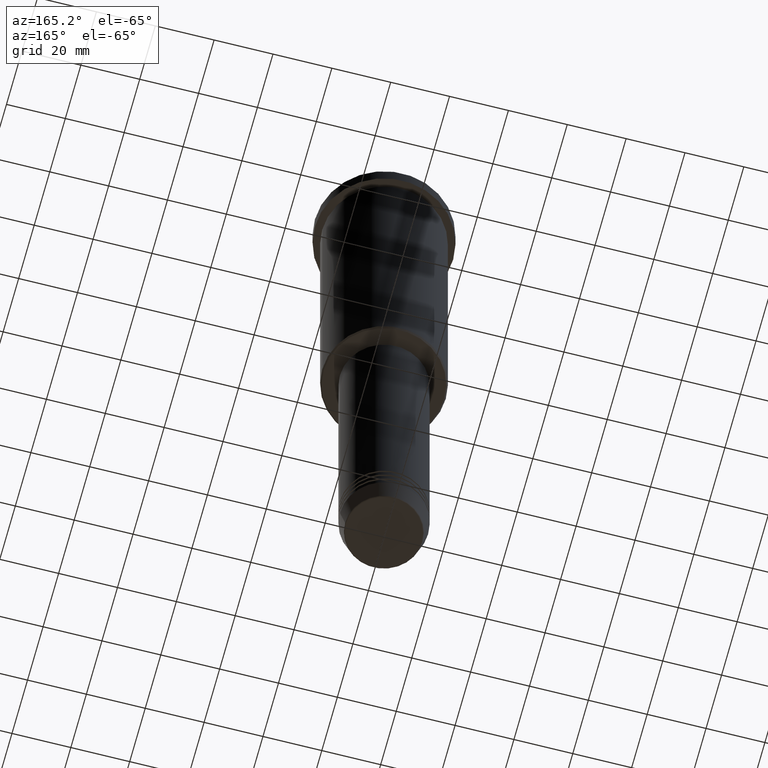
[diagram: clean part render]
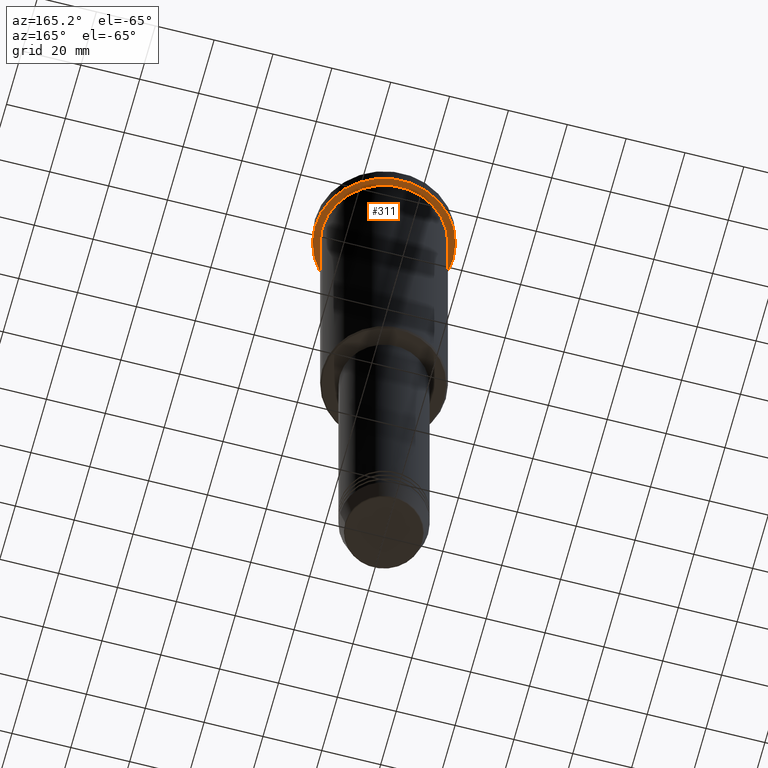
[diagram: same view with one face highlighted and labeled with its STEP entity id]
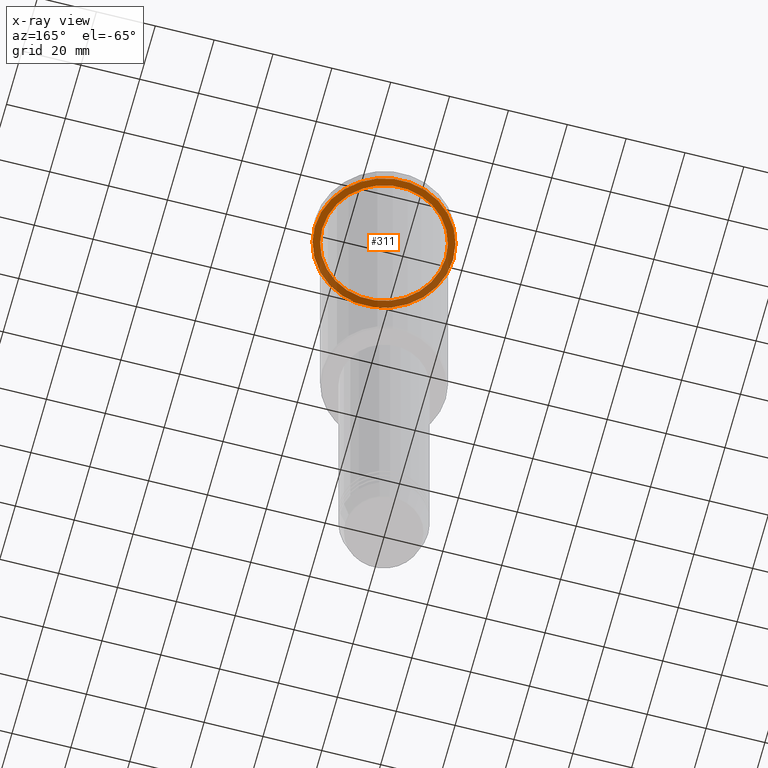
[diagram: x-ray of the same camera — body ghosted, the highlighted face saturated]
A machine part, auxiliary view. The second image highlights one B-rep face of the part: STEP entity #311.
The next image is the same camera in x-ray: the body ghosted, the highlighted face saturated — about 39% of this face is hidden behind the body in this view.
In plain terms, the highlighted planar face has unit normal (0, 0, -1).
Its self-contained STEP definition (entity closure, byte-faithful):
#5 = AXIS2_PLACEMENT_3D ( 'NONE', #916, #540, #736 ) ;
#38 = CIRCLE ( 'NONE', #96, 23.50000000000000000 ) ;
#63 = DIRECTION ( 'NONE',  ( -1.000000000000000000, 0.000000000000000000, -0.000000000000000000 ) ) ;
#68 = CARTESIAN_POINT ( 'NONE',  ( -23.50000000000000000, 2.877919977996280320E-15, -5.999999999999994671 ) ) ;
#79 = AXIS2_PLACEMENT_3D ( 'NONE', #1088, #836, #380 ) ;
#82 = DIRECTION ( 'NONE',  ( 1.000000000000000000, 0.000000000000000000, 0.000000000000000000 ) ) ;
#96 = AXIS2_PLACEMENT_3D ( 'NONE', #334, #698, #82 ) ;
#105 = ORIENTED_EDGE ( 'NONE', *, *, #920, .F. ) ;
#174 = ORIENTED_EDGE ( 'NONE', *, *, #805, .F. ) ;
#177 = CARTESIAN_POINT ( 'NONE',  ( 23.50000000000000000, 0.000000000000000000, -5.999999999999994671 ) ) ;
#204 = CIRCLE ( 'NONE', #79, 23.50000000000000000 ) ;
#212 = VERTEX_POINT ( 'NONE', #982 ) ;
#311 = ADVANCED_FACE ( 'NONE', ( #881, #712 ), #972, .T. ) ;
#312 = CIRCLE ( 'NONE', #5, 21.00000000000000000 ) ;
#334 = CARTESIAN_POINT ( 'NONE',  ( 0.000000000000000000, 0.000000000000000000, -5.999999999999994671 ) ) ;
#348 = EDGE_LOOP ( 'NONE', ( #1113, #758 ) ) ;
#380 = DIRECTION ( 'NONE',  ( 1.000000000000000000, 0.000000000000000000, 0.000000000000000000 ) ) ;
#397 = CARTESIAN_POINT ( 'NONE',  ( 0.000000000000000000, 0.000000000000000000, -5.999999999999994671 ) ) ;
#433 = CARTESIAN_POINT ( 'NONE',  ( 0.000000000000000000, 23.50000000000000000, -5.999999999999994671 ) ) ;
#521 = EDGE_CURVE ( 'NONE', #954, #212, #1150, .T. ) ;
#540 = DIRECTION ( 'NONE',  ( -0.000000000000000000, -0.000000000000000000, 1.000000000000000000 ) ) ;
#579 = DIRECTION ( 'NONE',  ( -1.000000000000000000, 0.000000000000000000, 0.000000000000000000 ) ) ;
#667 = DIRECTION ( 'NONE',  ( -0.000000000000000000, -0.000000000000000000, 1.000000000000000000 ) ) ;
#698 = DIRECTION ( 'NONE',  ( -0.000000000000000000, -0.000000000000000000, 1.000000000000000000 ) ) ;
#707 = DIRECTION ( 'NONE',  ( 0.000000000000000000, 0.000000000000000000, -1.000000000000000000 ) ) ;
#712 = FACE_OUTER_BOUND ( 'NONE', #824, .T. ) ;
#730 = VERTEX_POINT ( 'NONE', #68 ) ;
#736 = DIRECTION ( 'NONE',  ( -1.000000000000000000, 0.000000000000000000, 0.000000000000000000 ) ) ;
#758 = ORIENTED_EDGE ( 'NONE', *, *, #521, .T. ) ;
#805 = EDGE_CURVE ( 'NONE', #730, #854, #38, .T. ) ;
#824 = EDGE_LOOP ( 'NONE', ( #105, #174 ) ) ;
#836 = DIRECTION ( 'NONE',  ( -0.000000000000000000, -0.000000000000000000, 1.000000000000000000 ) ) ;
#841 = EDGE_CURVE ( 'NONE', #212, #954, #312, .T. ) ;
#854 = VERTEX_POINT ( 'NONE', #177 ) ;
#881 = FACE_BOUND ( 'NONE', #348, .T. ) ;
#916 = CARTESIAN_POINT ( 'NONE',  ( 0.000000000000000000, 0.000000000000000000, -5.999999999999994671 ) ) ;
#920 = EDGE_CURVE ( 'NONE', #854, #730, #204, .T. ) ;
#921 = AXIS2_PLACEMENT_3D ( 'NONE', #433, #707, #63 ) ;
#954 = VERTEX_POINT ( 'NONE', #1181 ) ;
#972 = PLANE ( 'NONE',  #921 ) ;
#982 = CARTESIAN_POINT ( 'NONE',  ( -21.00000000000000000, 0.000000000000000000, -5.999999999999994671 ) ) ;
#1038 = AXIS2_PLACEMENT_3D ( 'NONE', #397, #667, #579 ) ;
#1088 = CARTESIAN_POINT ( 'NONE',  ( 0.000000000000000000, 0.000000000000000000, -5.999999999999994671 ) ) ;
#1113 = ORIENTED_EDGE ( 'NONE', *, *, #841, .T. ) ;
#1150 = CIRCLE ( 'NONE', #1038, 21.00000000000000000 ) ;
#1181 = CARTESIAN_POINT ( 'NONE',  ( 21.00000000000000000, 2.571758278209441661E-15, -5.999999999999994671 ) ) ;